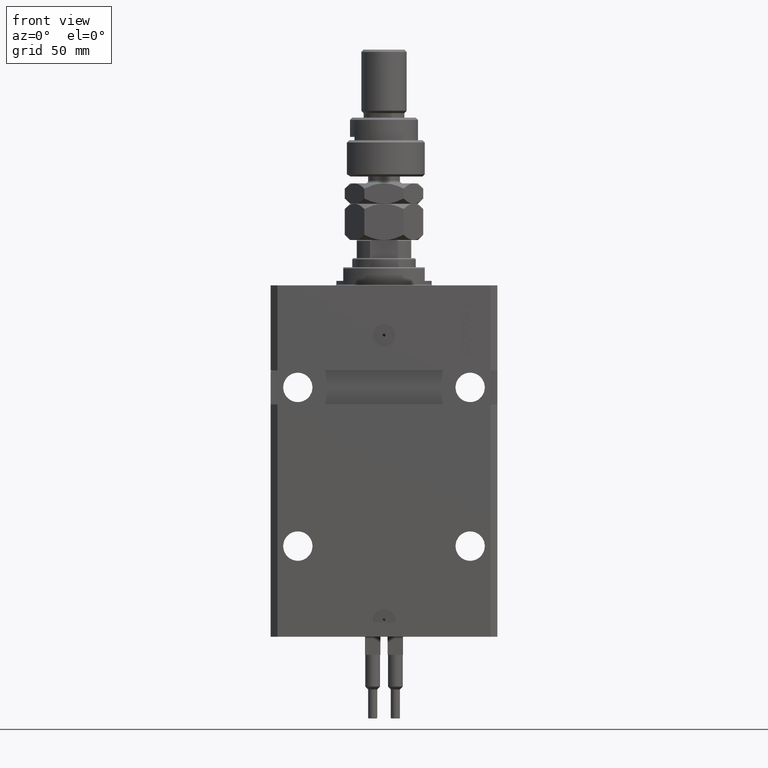
[diagram: clean part render]
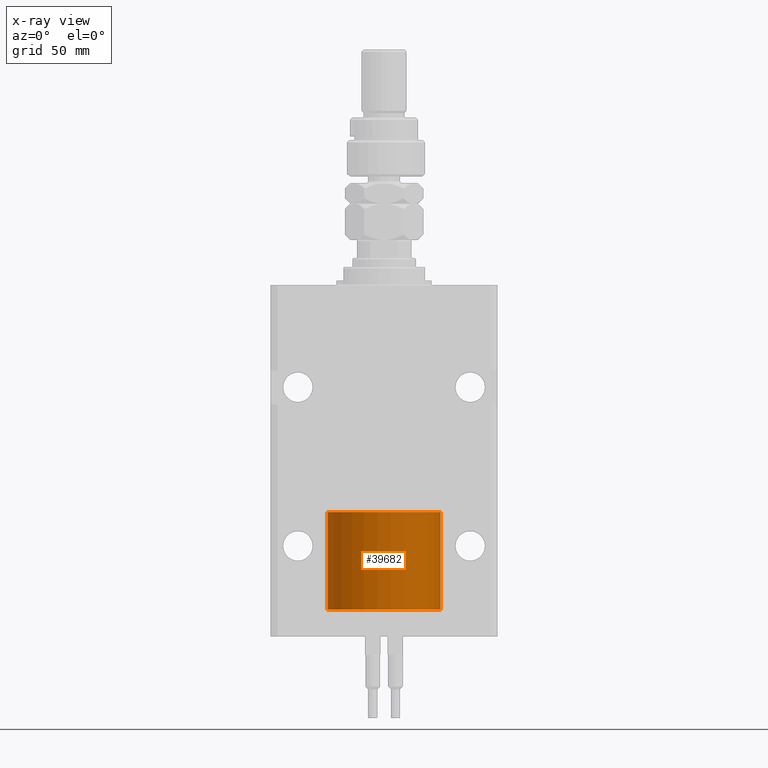
[diagram: x-ray — body ghosted, one internal face saturated and labeled with its STEP entity id]
A machine part, front view, then the same camera in x-ray: the body is ghosted and one INTERNAL B-rep face — a face not visible from any outside direction — is saturated and labeled: STEP entity #39682.
In plain terms, the highlighted cylindrical surface (partial cylindrical patch) has radius 25 mm, axis along (-0, -0, -1).
Its self-contained STEP definition (entity closure, byte-faithful):
#396 = CARTESIAN_POINT ( 'NONE',  ( 25.00000000000000000, 3.061616997868383043E-15, 43.10000000000000142 ) ) ;
#4779 = AXIS2_PLACEMENT_3D ( 'NONE', #40374, #19935, #36690 ) ;
#5838 = VERTEX_POINT ( 'NONE', #25546 ) ;
#8369 = DIRECTION ( 'NONE',  ( 0.000000000000000000, 0.000000000000000000, 1.000000000000000000 ) ) ;
#12027 = CARTESIAN_POINT ( 'NONE',  ( 0.000000000000000000, 0.000000000000000000, 0.000000000000000000 ) ) ;
#12307 = ORIENTED_EDGE ( 'NONE', *, *, #22054, .F. ) ;
#12588 = VECTOR ( 'NONE', #45055, 1000.000000000000000 ) ;
#14896 = CIRCLE ( 'NONE', #49248, 25.00000000000000000 ) ;
#16261 = CYLINDRICAL_SURFACE ( 'NONE', #4779, 25.00000000000000000 ) ;
#17154 = DIRECTION ( 'NONE',  ( 0.000000000000000000, 0.000000000000000000, 1.000000000000000000 ) ) ;
#17803 = CARTESIAN_POINT ( 'NONE',  ( 25.00000000000000000, 3.061616997868383043E-15, 43.10000000000000142 ) ) ;
#19359 = ORIENTED_EDGE ( 'NONE', *, *, #50640, .F. ) ;
#19935 = DIRECTION ( 'NONE',  ( -0.000000000000000000, -0.000000000000000000, -1.000000000000000000 ) ) ;
#22054 = EDGE_CURVE ( 'NONE', #40650, #46928, #14896, .T. ) ;
#22418 = ORIENTED_EDGE ( 'NONE', *, *, #30738, .T. ) ;
#24847 = LINE ( 'NONE', #29294, #12588 ) ;
#25282 = CARTESIAN_POINT ( 'NONE',  ( 0.000000000000000000, 0.000000000000000000, 43.10000000000000142 ) ) ;
#25546 = CARTESIAN_POINT ( 'NONE',  ( 25.00000000000000000, 3.061616997868383043E-15, 0.000000000000000000 ) ) ;
#28005 = CARTESIAN_POINT ( 'NONE',  ( -25.00000000000000000, 0.000000000000000000, 0.000000000000000000 ) ) ;
#28150 = DIRECTION ( 'NONE',  ( -0.000000000000000000, -0.000000000000000000, -1.000000000000000000 ) ) ;
#28510 = CIRCLE ( 'NONE', #48656, 25.00000000000000000 ) ;
#29184 = EDGE_LOOP ( 'NONE', ( #19359, #12307, #34891, #22418 ) ) ;
#29294 = CARTESIAN_POINT ( 'NONE',  ( -25.00000000000000000, 0.000000000000000000, 43.10000000000000142 ) ) ;
#29773 = EDGE_CURVE ( 'NONE', #40650, #36736, #24847, .T. ) ;
#30738 = EDGE_CURVE ( 'NONE', #36736, #5838, #28510, .T. ) ;
#32347 = LINE ( 'NONE', #396, #46950 ) ;
#34891 = ORIENTED_EDGE ( 'NONE', *, *, #29773, .T. ) ;
#36690 = DIRECTION ( 'NONE',  ( -1.000000000000000000, 0.000000000000000000, 0.000000000000000000 ) ) ;
#36736 = VERTEX_POINT ( 'NONE', #28005 ) ;
#37111 = CARTESIAN_POINT ( 'NONE',  ( -25.00000000000000000, 0.000000000000000000, 43.10000000000000142 ) ) ;
#39682 = ADVANCED_FACE ( 'NONE', ( #40116 ), #16261, .T. ) ;
#40116 = FACE_OUTER_BOUND ( 'NONE', #29184, .T. ) ;
#40332 = DIRECTION ( 'NONE',  ( 1.000000000000000000, 0.000000000000000000, 0.000000000000000000 ) ) ;
#40374 = CARTESIAN_POINT ( 'NONE',  ( 0.000000000000000000, 0.000000000000000000, 43.10000000000000142 ) ) ;
#40650 = VERTEX_POINT ( 'NONE', #37111 ) ;
#44458 = DIRECTION ( 'NONE',  ( 1.000000000000000000, 0.000000000000000000, 0.000000000000000000 ) ) ;
#45055 = DIRECTION ( 'NONE',  ( -0.000000000000000000, -0.000000000000000000, -1.000000000000000000 ) ) ;
#46928 = VERTEX_POINT ( 'NONE', #17803 ) ;
#46950 = VECTOR ( 'NONE', #28150, 1000.000000000000000 ) ;
#48656 = AXIS2_PLACEMENT_3D ( 'NONE', #12027, #8369, #40332 ) ;
#49248 = AXIS2_PLACEMENT_3D ( 'NONE', #25282, #17154, #44458 ) ;
#50640 = EDGE_CURVE ( 'NONE', #46928, #5838, #32347, .T. ) ;